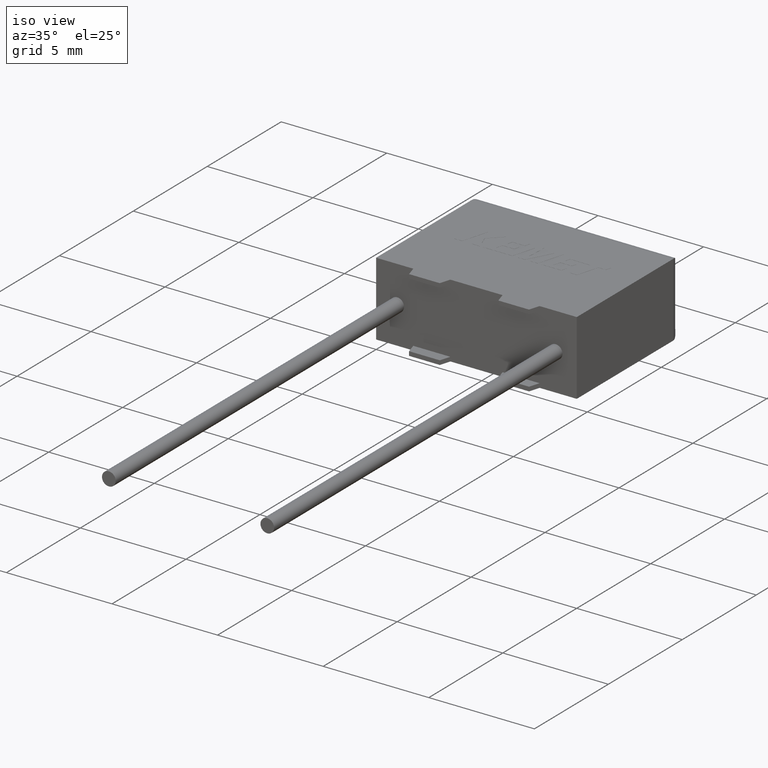
[diagram: clean part render]
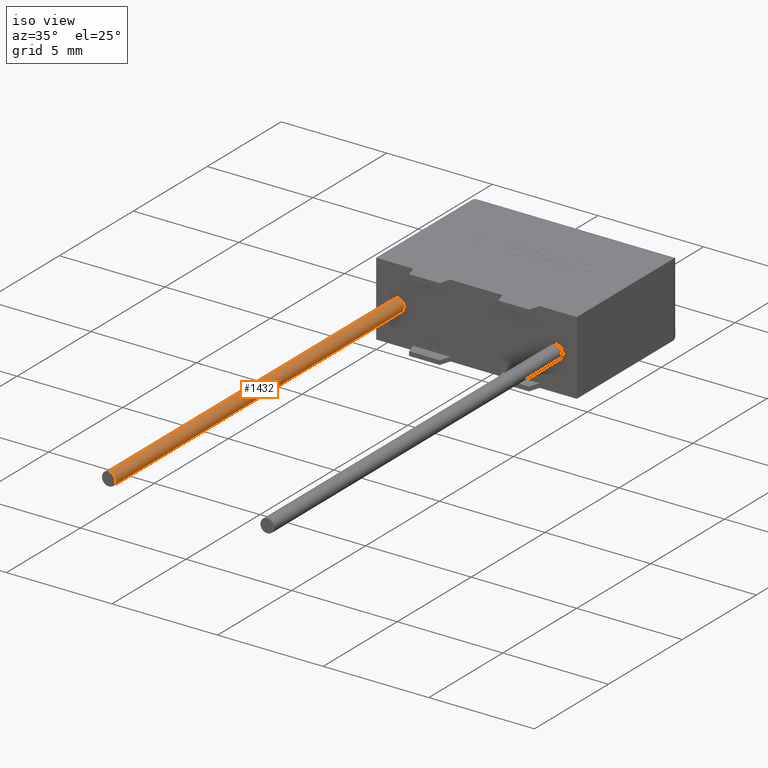
[diagram: same view with one face highlighted and labeled with its STEP entity id]
A machine part, iso view. The second image highlights one B-rep face of the part: STEP entity #1432.
In plain terms, the highlighted cylindrical surface (edge-blend (fillet) strip) has radius 0.325 mm, axis along (-0, 1, -0).
Its self-contained STEP definition (entity closure, byte-faithful):
#19 = EDGE_CURVE ( 'NONE', #403, #2783, #2978, .T. ) ;
#49 = ORIENTED_EDGE ( 'NONE', *, *, #296, .F. ) ;
#296 = EDGE_CURVE ( 'NONE', #2779, #677, #400, .T. ) ;
#400 = CIRCLE ( 'NONE', #605, 0.3250000000000000100 ) ;
#403 = VERTEX_POINT ( 'NONE', #1083 ) ;
#532 = DIRECTION ( 'NONE',  ( -0.0000000000000000000, 1.000000000000000000, -0.0000000000000000000 ) ) ;
#601 = CARTESIAN_POINT ( 'NONE',  ( 0.9999999999999991100, -19.50000000000000000, 1.749999999999999800 ) ) ;
#605 = AXIS2_PLACEMENT_3D ( 'NONE', #2637, #2878, #1387 ) ;
#608 = LINE ( 'NONE', #2303, #2155 ) ;
#677 = VERTEX_POINT ( 'NONE', #1383 ) ;
#724 = AXIS2_PLACEMENT_3D ( 'NONE', #2721, #2966, #1209 ) ;
#791 = AXIS2_PLACEMENT_3D ( 'NONE', #601, #1602, #2143 ) ;
#804 = LINE ( 'NONE', #1694, #2959 ) ;
#992 = ORIENTED_EDGE ( 'NONE', *, *, #19, .T. ) ;
#1083 = CARTESIAN_POINT ( 'NONE',  ( 0.9999999999999991100, 0.0000000000000000000, 1.424999999999999800 ) ) ;
#1170 = ORIENTED_EDGE ( 'NONE', *, *, #2866, .F. ) ;
#1209 = DIRECTION ( 'NONE',  ( 0.0000000000000000000, 0.0000000000000000000, 1.000000000000000000 ) ) ;
#1383 = CARTESIAN_POINT ( 'NONE',  ( 0.9999999999999991100, -19.50000000000000000, 2.074999999999999700 ) ) ;
#1387 = DIRECTION ( 'NONE',  ( 0.0000000000000000000, 0.0000000000000000000, -1.000000000000000000 ) ) ;
#1432 = ADVANCED_FACE ( 'NONE', ( #3144 ), #1705, .T. ) ;
#1461 = DIRECTION ( 'NONE',  ( -0.0000000000000000000, 1.000000000000000000, -0.0000000000000000000 ) ) ;
#1602 = DIRECTION ( 'NONE',  ( -0.0000000000000000000, 1.000000000000000000, -0.0000000000000000000 ) ) ;
#1694 = CARTESIAN_POINT ( 'NONE',  ( 0.9999999999999991100, -19.50000000000000000, 2.074999999999999700 ) ) ;
#1705 = CYLINDRICAL_SURFACE ( 'NONE', #791, 0.3249999999999997900 ) ;
#2143 = DIRECTION ( 'NONE',  ( 0.0000000000000000000, 0.0000000000000000000, 1.000000000000000000 ) ) ;
#2155 = VECTOR ( 'NONE', #532, 1000.000000000000000 ) ;
#2303 = CARTESIAN_POINT ( 'NONE',  ( 0.9999999999999991100, -19.50000000000000000, 1.424999999999999800 ) ) ;
#2637 = CARTESIAN_POINT ( 'NONE',  ( 0.9999999999999991100, -19.50000000000000000, 1.749999999999999800 ) ) ;
#2721 = CARTESIAN_POINT ( 'NONE',  ( 0.9999999999999991100, 0.0000000000000000000, 1.749999999999999800 ) ) ;
#2779 = VERTEX_POINT ( 'NONE', #3123 ) ;
#2783 = VERTEX_POINT ( 'NONE', #2909 ) ;
#2833 = ORIENTED_EDGE ( 'NONE', *, *, #3037, .T. ) ;
#2866 = EDGE_CURVE ( 'NONE', #677, #2783, #804, .T. ) ;
#2878 = DIRECTION ( 'NONE',  ( 0.0000000000000000000, -1.000000000000000000, 0.0000000000000000000 ) ) ;
#2908 = EDGE_LOOP ( 'NONE', ( #49, #2833, #992, #1170 ) ) ;
#2909 = CARTESIAN_POINT ( 'NONE',  ( 0.9999999999999991100, 0.0000000000000000000, 2.074999999999999700 ) ) ;
#2959 = VECTOR ( 'NONE', #1461, 1000.000000000000000 ) ;
#2966 = DIRECTION ( 'NONE',  ( -0.0000000000000000000, -1.000000000000000000, -0.0000000000000000000 ) ) ;
#2978 = CIRCLE ( 'NONE', #724, 0.3249999999999997900 ) ;
#3037 = EDGE_CURVE ( 'NONE', #2779, #403, #608, .T. ) ;
#3123 = CARTESIAN_POINT ( 'NONE',  ( 0.9999999999999991100, -19.50000000000000000, 1.424999999999999800 ) ) ;
#3144 = FACE_OUTER_BOUND ( 'NONE', #2908, .T. ) ;